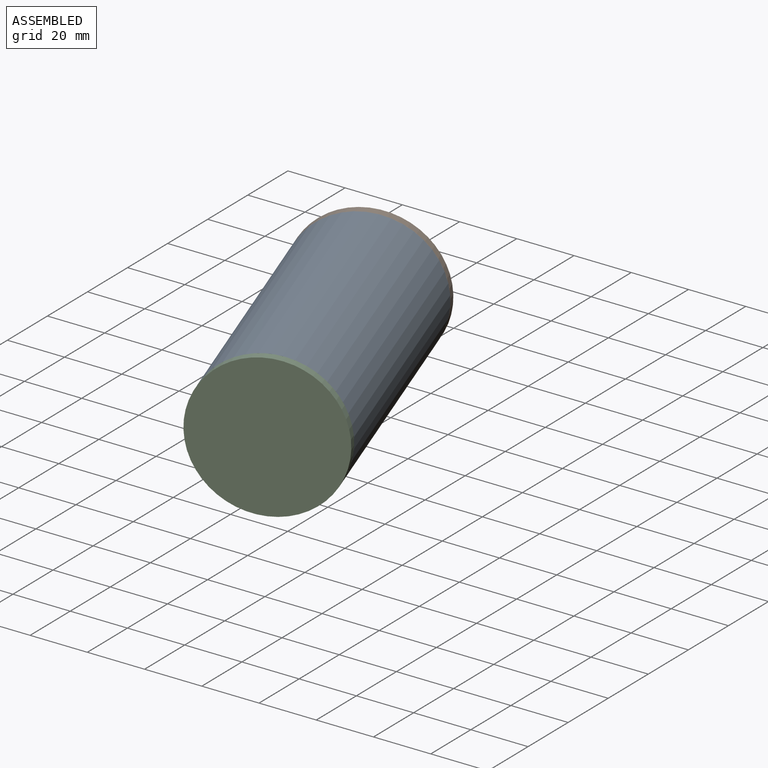
[diagram: assembled view]
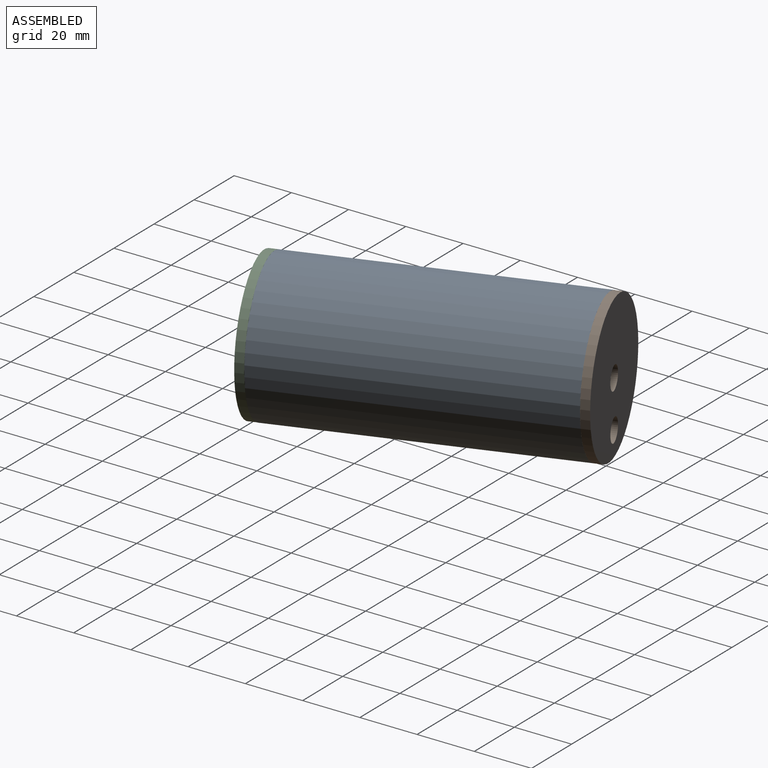
[diagram: assembled view, second angle]
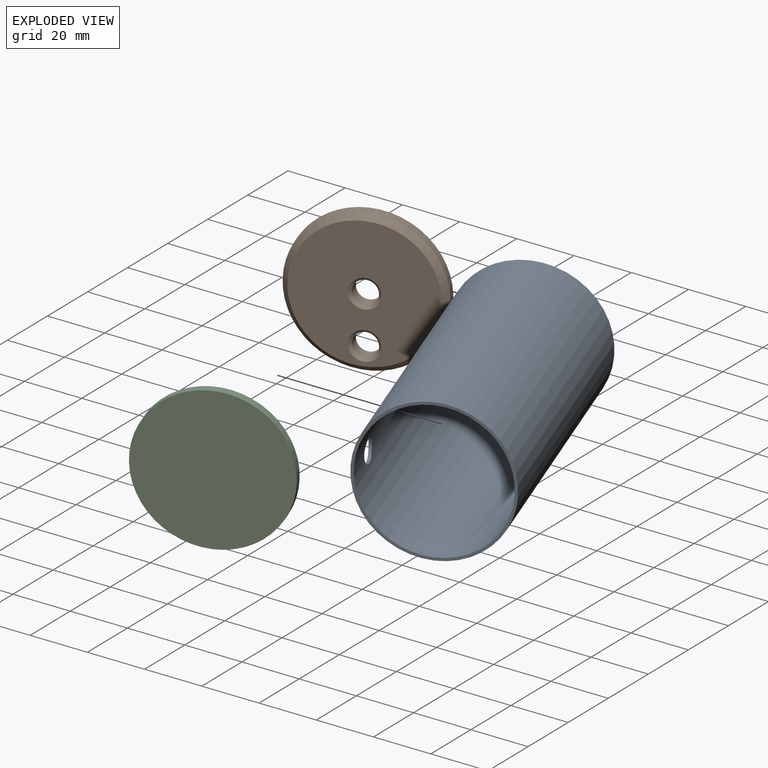
[diagram: exploded view]
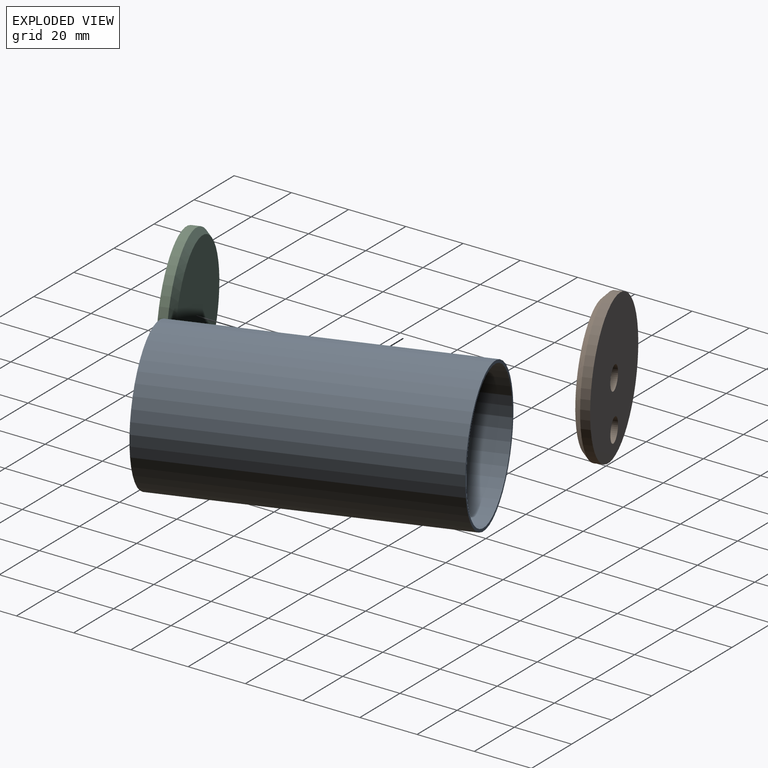
[diagram: exploded view, second angle]
ASSEMBLY  parts=3 mates=2
PART A: 5 faces, bbox 50x100x50 mm
  f0: cylinder r=24mm len=100mm, axis (0,-1,0), area 15028.8mm2, adj f1,f2,f4
  f1: plane 50x50mm, normal (0,1,0), area 153.9mm2, adj f0,f3
  f2: plane 50x50mm, normal (0,-1,0), area 153.9mm2, adj f0,f3
  f3: cylinder r=25mm len=100mm, axis (0,-1,0), area 15657.9mm2, adj f1,f2,f4
  f4: cylinder r=4mm len=8mm, axis (-1,0,0), area 25.3mm2, adj f0,f3
PART B: 8 faces, bbox 50x5x50 mm
  f0: cylinder r=4mm len=8mm, axis (0,-1,0), area 100.5mm2, adj f1,f7
  f1: plane 50x50mm, normal (0,1,0), area 1863mm2, adj f0,f3,f5
  f2: plane 46x46mm, normal (0,-1,0), area 1504.8mm2, adj f4,f6,f7
  f3: cylinder r=25mm len=50mm, axis (0,-1,0), area 471.2mm2, adj f1,f4
  f4: cone r=23mm half-angle=45deg, axis (0,1,0), area 426.5mm2, adj f2,f3
  f5: cylinder r=4mm len=8mm, axis (0,-1,0), area 100.5mm2, adj f1,f6
  f6: cone r=4mm half-angle=45deg, axis (0,-1,0), area 40mm2, adj f2,f5
  f7: cone r=4mm half-angle=45deg, axis (0,-1,0), area 40mm2, adj f0,f2
PART C: 4 faces, bbox 50x5x50 mm
  f0: plane 50x50mm, normal (0,1,0), area 1963.5mm2, adj f2
  f1: plane 46x46mm, normal (0,-1,0), area 1661.9mm2, adj f3
  f2: cylinder r=25mm len=50mm, axis (0,-1,0), area 471.2mm2, adj f0,f3
  f3: cone r=23mm half-angle=45deg, axis (0,1,0), area 426.5mm2, adj f1,f2
PLACE A rot(axis=(0.99,0.17,0),180deg) t=(11.21,23.85,39.58)mm
PLACE B rot(axis=(-0.17,0.99,0),180deg) t=(-22.33,121.23,39.58)mm
PLACE C rot(axis=(0,0,-1),161deg) t=(12.18,21.01,39.58)mm
MATE fastened B.f4 <-> A.f0  axis (0.33,-0.95,0) through (-21.35,118.4,39.58)mm
MATE fastened A.f0 <-> C.f3  axis (0.33,-0.95,0) through (11.21,23.85,39.58)mm
